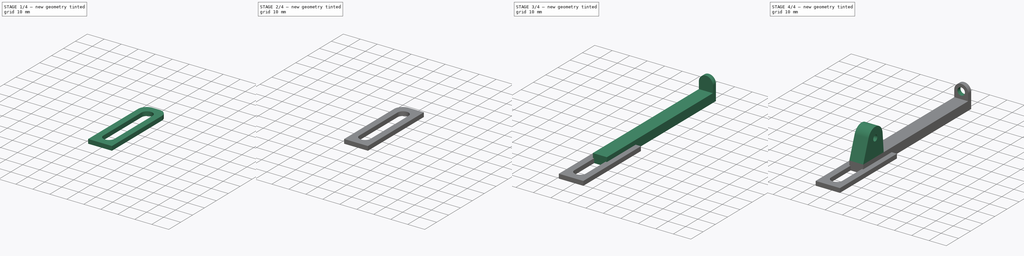
[diagram: build sequence overview — one tinted view per stage of 4, left to right]
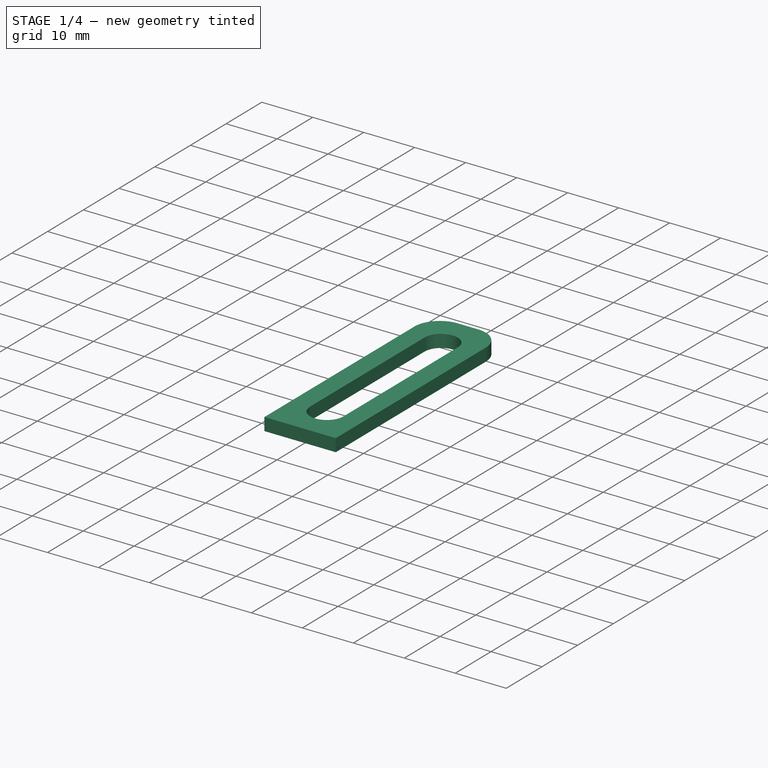
[diagram: stage 1 of 4 — iso view after this stage's code; geometry added in this stage tinted green]
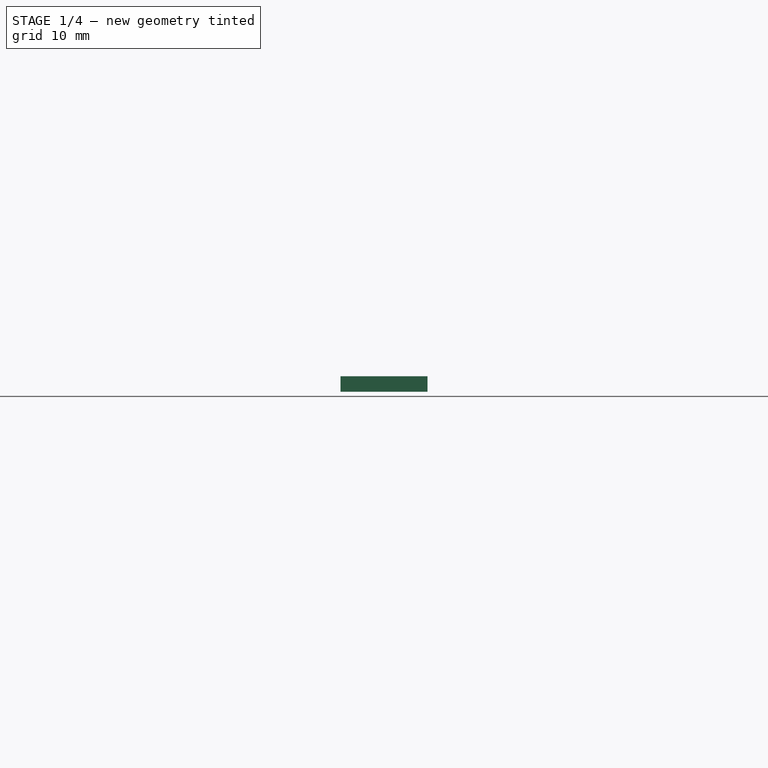
[diagram: stage 1 of 4 — front view after this stage's code; geometry added in this stage tinted green]
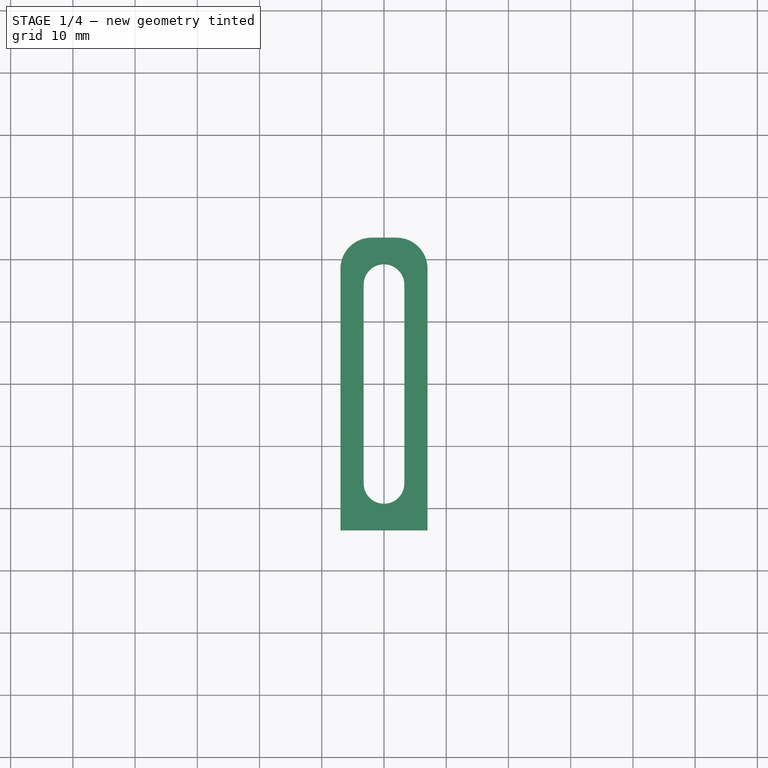
[diagram: stage 1 of 4 — top view after this stage's code; geometry added in this stage tinted green]
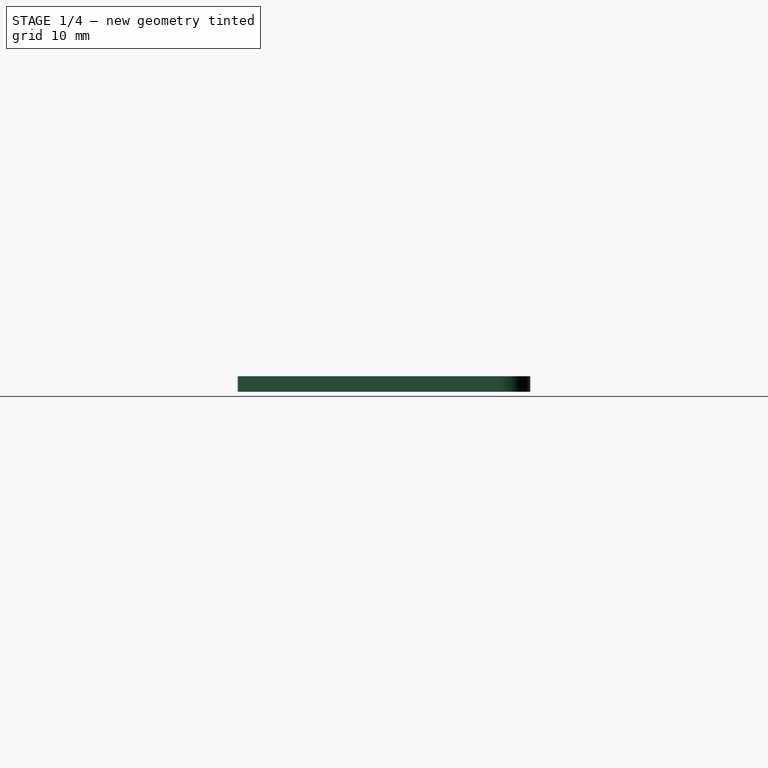
[diagram: stage 1 of 4 — right view after this stage's code; geometry added in this stage tinted green]
FCSTD DOCUMENT  (FreeCAD 0.19R24276 (Git))
Label: Jetson_box_base
License: All rights reserved
LicenseURL: http://en.wikipedia.org/wiki/All_rights_reserved
objects: Sketcher::SketchObject×11, PartDesign::Pad×5, PartDesign::Pocket×3, PartDesign::Body×3, PartDesign::Fillet×2, PartDesign::Hole×1
note: 36 computed .brp shape members not serialized (recipe doc carries the construction recipe); baked Part::Feature solids carry a one-line shape summary decoded from their .brp

FEATURE [Sketcher::SketchObject] Sketch013  label="slot_base_sketch001"
  FullyConstrained = true
  MapMode = 5
  Support = -> [XY_Plane002]
  sketch-geometry (4):
    g0: LineSegment StartX=-7 StartY=-23.5 StartZ=0 EndX=7 EndY=-23.5 EndZ=0
    g1: LineSegment StartX=7 StartY=-23.5 StartZ=0 EndX=7 EndY=23.5 EndZ=0
    g2: LineSegment StartX=7 StartY=23.5 StartZ=0 EndX=-7 EndY=23.5 EndZ=0
    g3: LineSegment StartX=-7 StartY=23.5 StartZ=0 EndX=-7 EndY=-23.5 EndZ=0
  constraints (11):
    c: Coincident(g0,g1)
    c: Coincident(g1,g2)
    c: Coincident(g2,g3)
    c: Coincident(g3,g0)
    c: Horizontal(g0)
    c: Horizontal(g2)
    c: Vertical(g1)
    c: Vertical(g3)
    c: Symmetric(g1,g0,g-1)
    c: DistanceX(g2,g2) = 14
    c: DistanceY(g3,g3) = 47
FEATURE [PartDesign::Pad] Pad004  label="slot_base001"
  Direction = (1,1,1)
  Length = 2.5
  Length2 = 100
  Profile = -> Sketch013
  Type = 0
FEATURE [Sketcher::SketchObject] Sketch012  label="slot_sketch001"
  FullyConstrained = true
  MapMode = 5
  Placement = pos=(0,0,2.5) rot=(0,0,1;0rad)
  Support = -> [Pad004]
  sketch-geometry (4):
    g0: ArcOfCircle CenterX=0 CenterY=16 CenterZ=0 NormalX=0 NormalY=0 NormalZ=1 AngleXU=0 Radius=3.265 StartAngle=1.6e-15 EndAngle=3.14159
    g1: ArcOfCircle CenterX=0 CenterY=-16 CenterZ=0 NormalX=0 NormalY=0 NormalZ=1 AngleXU=0 Radius=3.265 StartAngle=3.14159 EndAngle=6.28319
    g2: LineSegment StartX=-3.265 StartY=16 StartZ=0 EndX=-3.265 EndY=-16 EndZ=0
    g3: LineSegment StartX=3.265 StartY=16 StartZ=0 EndX=3.265 EndY=-16 EndZ=0
  constraints (9):
    c: Tangent(g0,g3) = 1.5708
    c: Tangent(g0,g2) = -1.5708
    c: Tangent(g2,g1) = -1.5708
    c: Tangent(g3,g1) = 1.5708
    c: Equal(g0,g1)
    c: PointOnObject(g0,g-2)
    c: Symmetric(g0,g1,g-1)
    c: DistanceY(g1,g0) = 32
    c: Radius(g0) = 3.265
FEATURE [PartDesign::Pocket] Pocket002  label="slot001"
  BaseFeature = -> Pad004
  Length = 5
  Length2 = 100
  Profile = -> Sketch012
  Type = 1
FEATURE [PartDesign::Body] Body001  label="vert_slot"
  Group = -> [Sketch010,Pad003,Sketch011,Pocket001,Fillet]
  Origin = -> Origin001
  Placement = pos=(-11,46,0) rot=(0,0,1;0rad)
  Tip = -> Fillet
FEATURE [PartDesign::Fillet] Fillet001
  Base = -> Pocket002 [Edge5,Edge8]
  BaseFeature = -> Pocket002
  Radius = 5
  SupportTransform = false
FEATURE [PartDesign::Body] Body002  label="hori_slot"
  Group = -> [Sketch013,Pad004,Sketch012,Pocket002,Fillet001]
  Origin = -> Origin002
  Placement = pos=(27.5,46,0) rot=(0,0,-1;1.5708rad)
  Tip = -> Fillet001
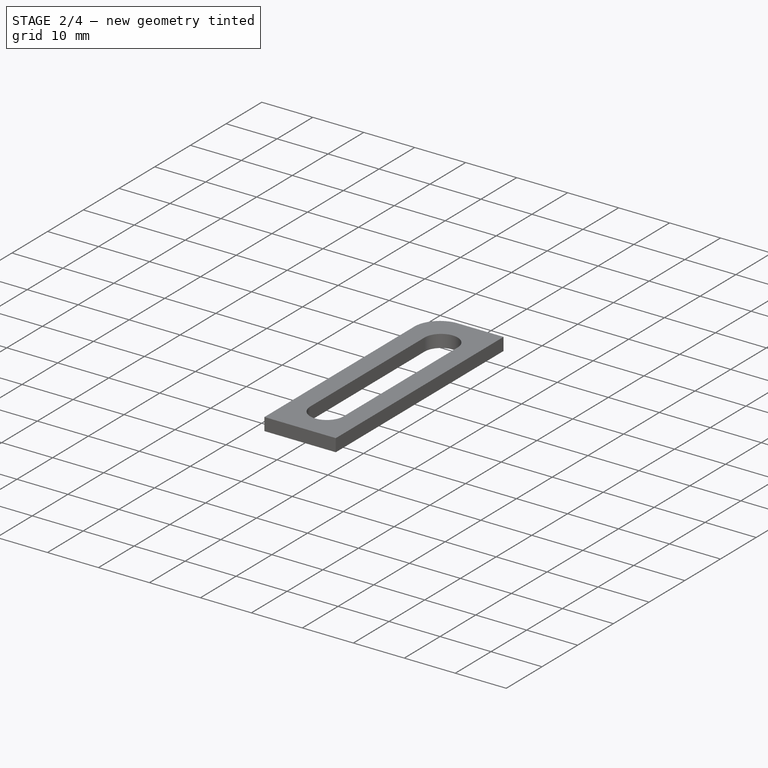
[diagram: stage 2 of 4 — iso view after this stage's code; geometry added in this stage tinted green]
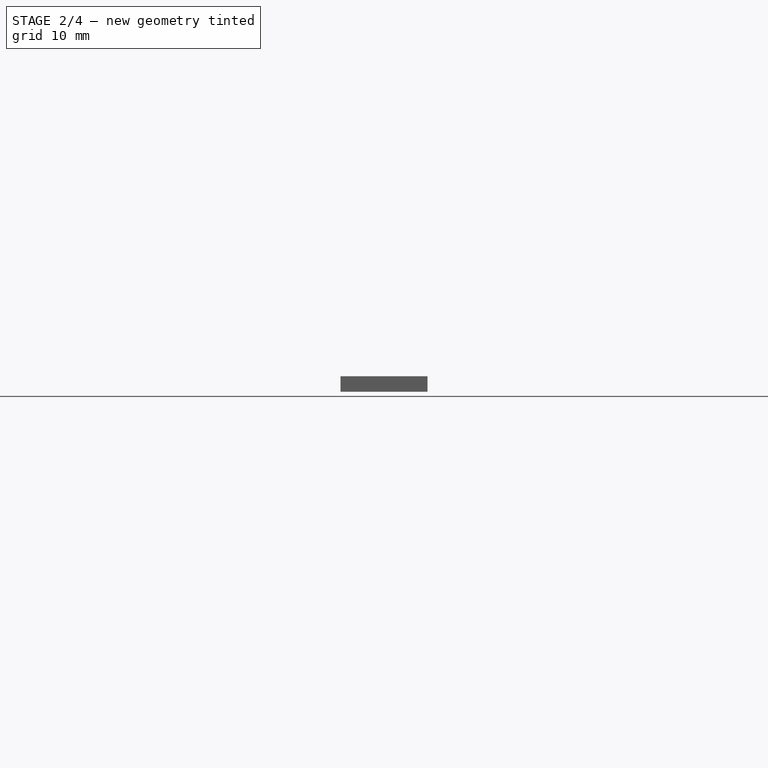
[diagram: stage 2 of 4 — front view after this stage's code; geometry added in this stage tinted green]
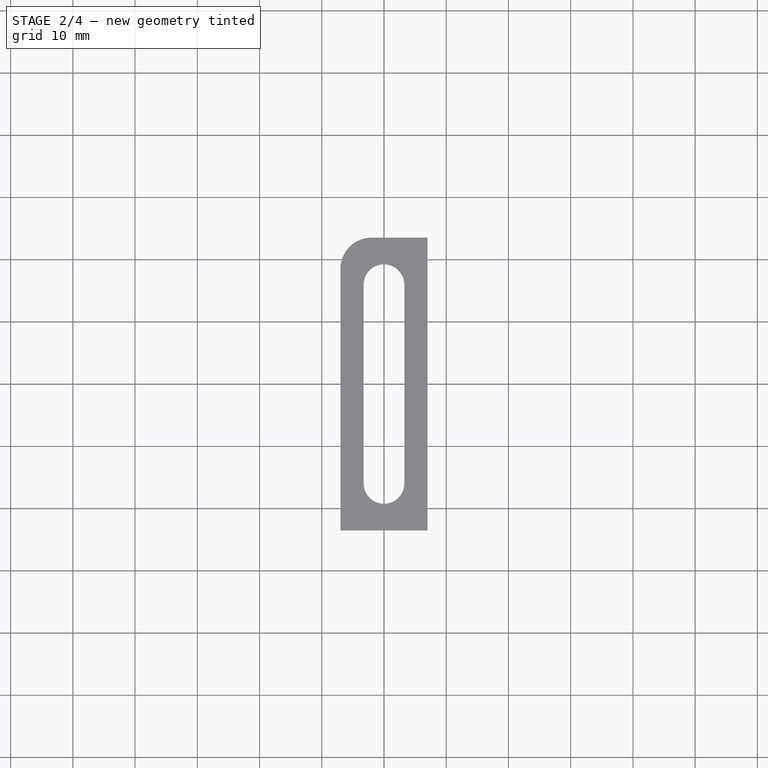
[diagram: stage 2 of 4 — top view after this stage's code; geometry added in this stage tinted green]
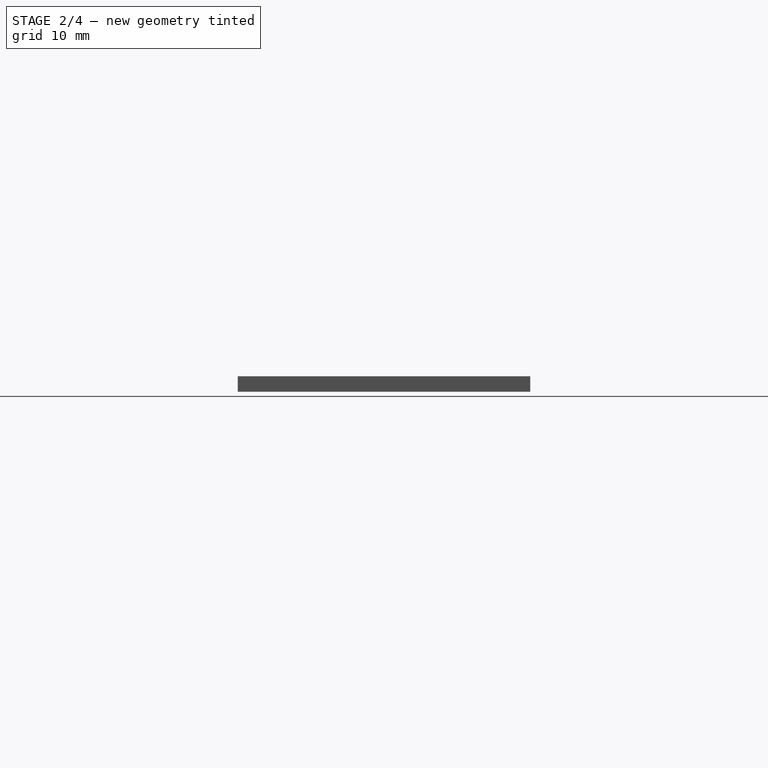
[diagram: stage 2 of 4 — right view after this stage's code; geometry added in this stage tinted green]
FEATURE [Sketcher::SketchObject] Sketch008  label="left_ear_trimmer_sketch"
  ExternalGeometry = -> [Hole]
  FullyConstrained = true
  MapMode = 5
  Placement = pos=(0,0,5) rot=(0,0,1;0rad)
  Support = -> [Hole]
  sketch-geometry (4):
    g0: LineSegment StartX=-4 StartY=16.8978 StartZ=0 EndX=-1 EndY=16.8978 EndZ=0
    g1: LineSegment StartX=-1 StartY=16.8978 StartZ=0 EndX=-1 EndY=0 EndZ=0
    g2: LineSegment StartX=-1 StartY=0 StartZ=0 EndX=-4 EndY=0 EndZ=0
    g3: LineSegment StartX=-4 StartY=0 StartZ=0 EndX=-4 EndY=16.8978 EndZ=0
  constraints (11):
    c: Coincident(g0,g1)
    c: Coincident(g1,g2)
    c: Coincident(g2,g3)
    c: Coincident(g3,g0)
    c: Horizontal(g0)
    c: Horizontal(g2)
    c: Vertical(g1)
    c: Vertical(g3)
    c: Coincident(g0,g-3)
    c: PointOnObject(g1,g-1)
    c: DistanceX(g0,g-3) = 5
FEATURE [Sketcher::SketchObject] Sketch009  label="right_ear_trimmer_sketch"
  ExternalGeometry = -> [Hole]
  FullyConstrained = true
  MapMode = 5
  Placement = pos=(0,0,5) rot=(0,0,1;0rad)
  Support = -> [Hole]
  sketch-geometry (4):
    g0: LineSegment StartX=4 StartY=16.8978 StartZ=0 EndX=1 EndY=16.8978 EndZ=0
    g1: LineSegment StartX=1 StartY=16.8978 StartZ=0 EndX=1 EndY=0 EndZ=0
    g2: LineSegment StartX=1 StartY=0 StartZ=0 EndX=4 EndY=0 EndZ=0
    g3: LineSegment StartX=4 StartY=0 StartZ=0 EndX=4 EndY=16.8978 EndZ=0
  constraints (11):
    c: Coincident(g0,g1)
    c: Coincident(g1,g2)
    c: Coincident(g2,g3)
    c: Coincident(g3,g0)
    c: Horizontal(g0)
    c: Horizontal(g2)
    c: Vertical(g1)
    c: Vertical(g3)
    c: Coincident(g0,g-3)
    c: PointOnObject(g1,g-1)
    c: DistanceX(g-3,g0) = 5
FEATURE [PartDesign::Body] Body  label="Jetson_box_connector"
  Group = -> [Sketch,Pad,Sketch004,Pad001,Sketch005,Pocket,Sketch006,Pad002,Sketch007,Hole,Sketch008,Sketch009]
  Origin = -> Origin
  Tip = -> Hole
FEATURE [Sketcher::SketchObject] Sketch010  label="slot_base_sketch"
  FullyConstrained = true
  MapMode = 5
  Support = -> [XY_Plane001]
  sketch-geometry (4):
    g0: LineSegment StartX=-7 StartY=-23.5 StartZ=0 EndX=7 EndY=-23.5 EndZ=0
    g1: LineSegment StartX=7 StartY=-23.5 StartZ=0 EndX=7 EndY=23.5 EndZ=0
    g2: LineSegment StartX=7 StartY=23.5 StartZ=0 EndX=-7 EndY=23.5 EndZ=0
    g3: LineSegment StartX=-7 StartY=23.5 StartZ=0 EndX=-7 EndY=-23.5 EndZ=0
  constraints (11):
    c: Coincident(g0,g1)
    c: Coincident(g1,g2)
    c: Coincident(g2,g3)
    c: Coincident(g3,g0)
    c: Horizontal(g0)
    c: Horizontal(g2)
    c: Vertical(g1)
    c: Vertical(g3)
    c: Symmetric(g1,g0,g-1)
    c: DistanceX(g2,g2) = 14
    c: DistanceY(g3,g3) = 47
FEATURE [PartDesign::Pad] Pad003  label="slot_base"
  Direction = (1,1,1)
  Length = 2.5
  Length2 = 100
  Profile = -> Sketch010
  Type = 0
FEATURE [Sketcher::SketchObject] Sketch011  label="slot_sketch"
  FullyConstrained = true
  MapMode = 5
  Placement = pos=(0,0,2.5) rot=(0,0,1;0rad)
  Support = -> [Pad003]
  sketch-geometry (4):
    g0: ArcOfCircle CenterX=0 CenterY=16 CenterZ=0 NormalX=0 NormalY=0 NormalZ=1 AngleXU=0 Radius=3.265 StartAngle=1.6e-15 EndAngle=3.14159
    g1: ArcOfCircle CenterX=0 CenterY=-16 CenterZ=0 NormalX=0 NormalY=0 NormalZ=1 AngleXU=0 Radius=3.265 StartAngle=3.14159 EndAngle=6.28319
    g2: LineSegment StartX=-3.265 StartY=16 StartZ=0 EndX=-3.265 EndY=-16 EndZ=0
    g3: LineSegment StartX=3.265 StartY=16 StartZ=0 EndX=3.265 EndY=-16 EndZ=0
  constraints (9):
    c: Tangent(g0,g3) = 1.5708
    c: Tangent(g0,g2) = -1.5708
    c: Tangent(g2,g1) = -1.5708
    c: Tangent(g3,g1) = 1.5708
    c: Equal(g0,g1)
    c: PointOnObject(g0,g-2)
    c: Symmetric(g0,g1,g-1)
    c: DistanceY(g1,g0) = 32
    c: Radius(g0) = 3.265
FEATURE [PartDesign::Pocket] Pocket001  label="slot"
  BaseFeature = -> Pad003
  Length = 5
  Length2 = 100
  Profile = -> Sketch011
  Type = 1
FEATURE [PartDesign::Fillet] Fillet
  Base = -> Pocket001 [Edge5,Edge1]
  BaseFeature = -> Pocket001
  Radius = 5
  SupportTransform = false
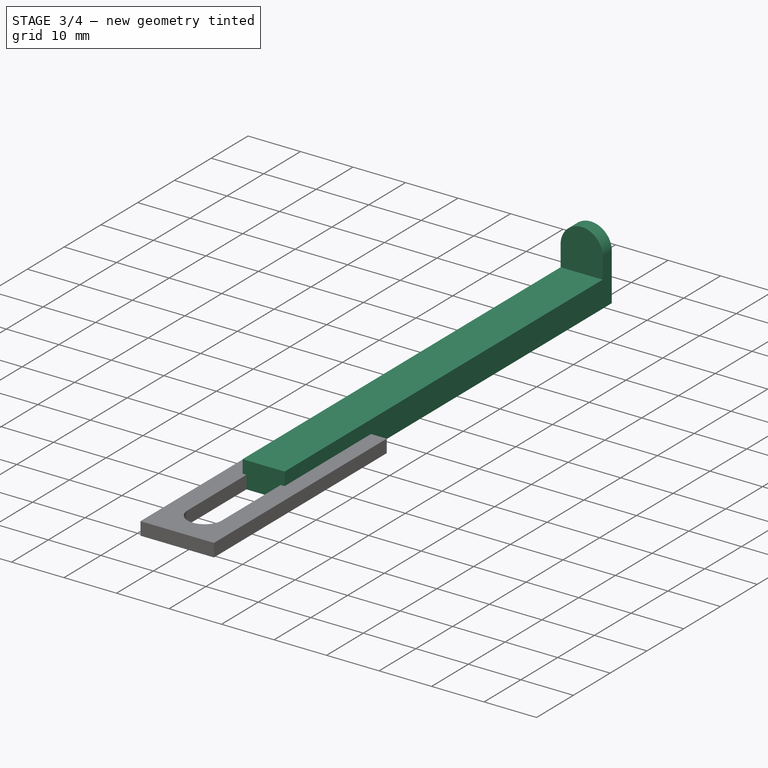
[diagram: stage 3 of 4 — iso view after this stage's code; geometry added in this stage tinted green]
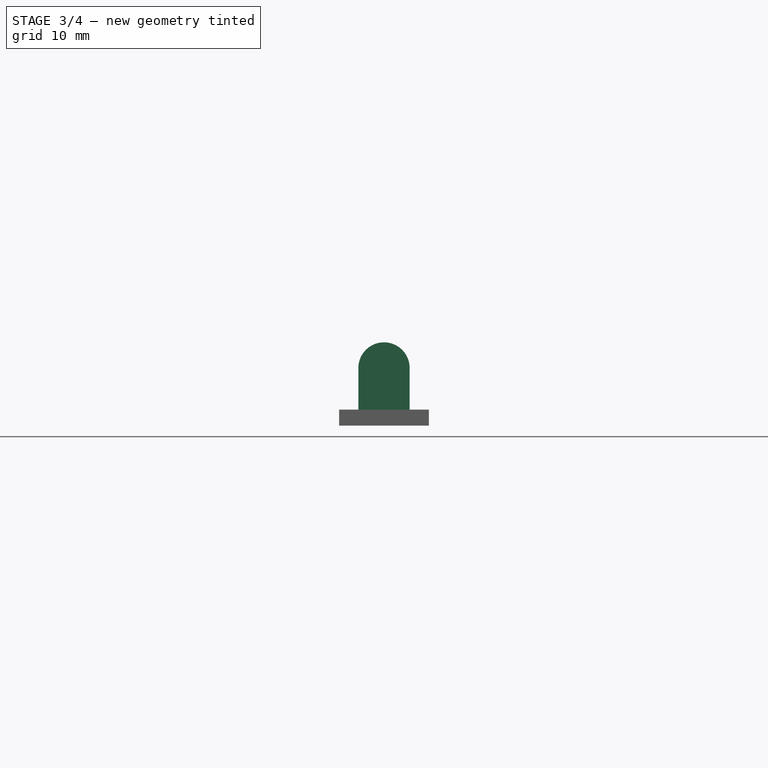
[diagram: stage 3 of 4 — front view after this stage's code; geometry added in this stage tinted green]
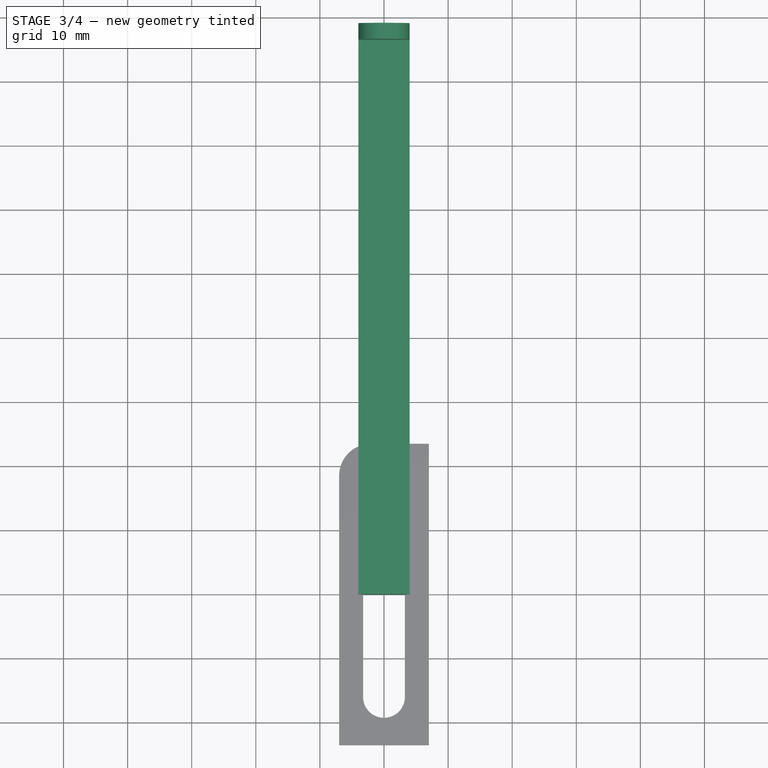
[diagram: stage 3 of 4 — top view after this stage's code; geometry added in this stage tinted green]
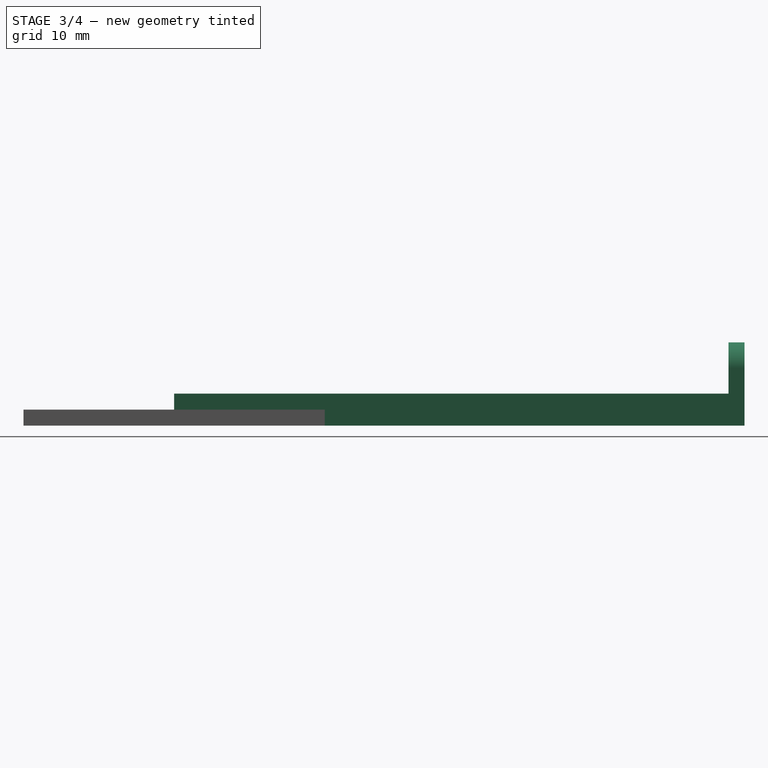
[diagram: stage 3 of 4 — right view after this stage's code; geometry added in this stage tinted green]
FEATURE [Sketcher::SketchObject] Sketch  label="floor_sketch"
  FullyConstrained = true
  MapMode = 5
  Support = -> [XY_Plane]
  sketch-geometry (4):
    g0: LineSegment StartX=-4 StartY=0 StartZ=0 EndX=4 EndY=0 EndZ=0
    g1: LineSegment StartX=4 StartY=0 StartZ=0 EndX=4 EndY=89 EndZ=0
    g2: LineSegment StartX=4 StartY=89 StartZ=0 EndX=-4 EndY=89 EndZ=0
    g3: LineSegment StartX=-4 StartY=89 StartZ=0 EndX=-4 EndY=0 EndZ=0
  constraints (11):
    c: Coincident(g0,g1)
    c: Coincident(g1,g2)
    c: Coincident(g2,g3)
    c: Coincident(g3,g0)
    c: Horizontal(g2)
    c: Vertical(g1)
    c: Vertical(g3)
    c: PointOnObject(g0,g-1)
    c: Symmetric(g0,g0,g-2)
    c: DistanceY(g3,g3) = 89
    c: DistanceX(g0,g-1) = 4
FEATURE [PartDesign::Pad] Pad  label="floor"
  Direction = (1,1,1)
  Length = 5
  Length2 = 100
  Profile = -> Sketch
  Type = 0
FEATURE [Sketcher::SketchObject] Sketch004  label="dowel_hole_base_sketch"
  ExternalGeometry = -> [Pad]
  FullyConstrained = true
  MapMode = 5
  Placement = pos=(0,89,0) rot=(0,0.707107,0.707107;3.14159rad)
  sketch-geometry (4):
    g0: ArcOfCircle CenterX=0 CenterY=9 CenterZ=0 NormalX=0 NormalY=0 NormalZ=1 AngleXU=0 Radius=4 StartAngle=-1.457e-13 EndAngle=3.14159
    g1: LineSegment StartX=-4 StartY=9 StartZ=0 EndX=-4 EndY=5 EndZ=0
    g2: LineSegment StartX=4 StartY=9 StartZ=0 EndX=4 EndY=5 EndZ=0
    g3: LineSegment StartX=4 StartY=5 StartZ=0 EndX=-4 EndY=5 EndZ=0
  constraints (9):
    c: Radius(g0) = 4
    c: Tangent(g1,g0) = -1.5708
    c: PointOnObject(g0,g-2)
    c: Coincident(g-3,g1)
    c: Coincident(g2,g-3)
    c: Coincident(g3,g2)
    c: Coincident(g3,g1)
    c: Tangent(g2,g0) = 1.5708
    c: Distance(g0,g3) = 4
FEATURE [PartDesign::Pad] Pad001  label="dowel_hole_base"
  BaseFeature = -> Pad
  Direction = (1,1,1)
  Length = 2.5
  Length2 = 100
  Profile = -> Sketch004
  Reversed = true
  Type = 0
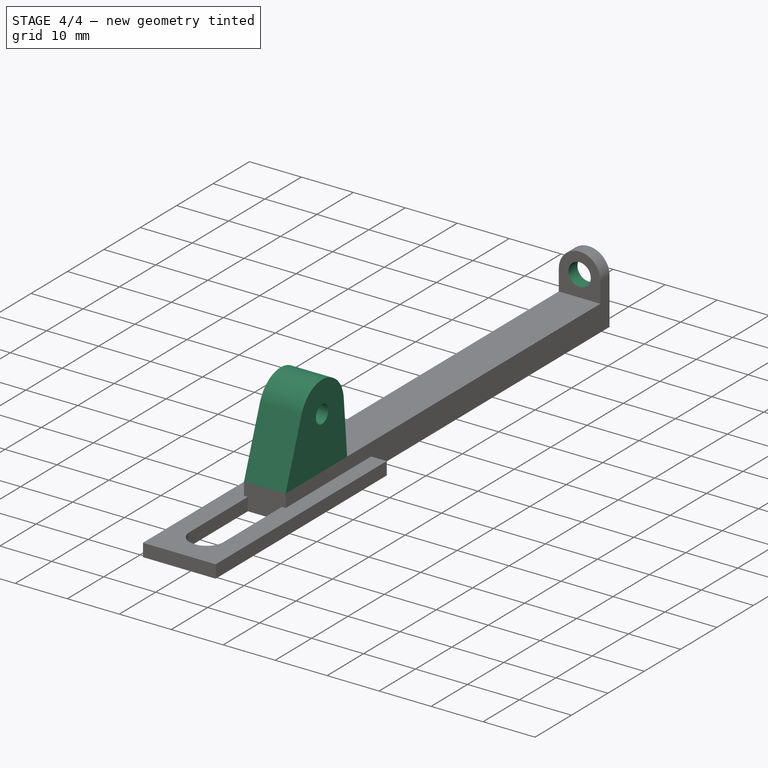
[diagram: stage 4 of 4 — iso view after this stage's code; geometry added in this stage tinted green]
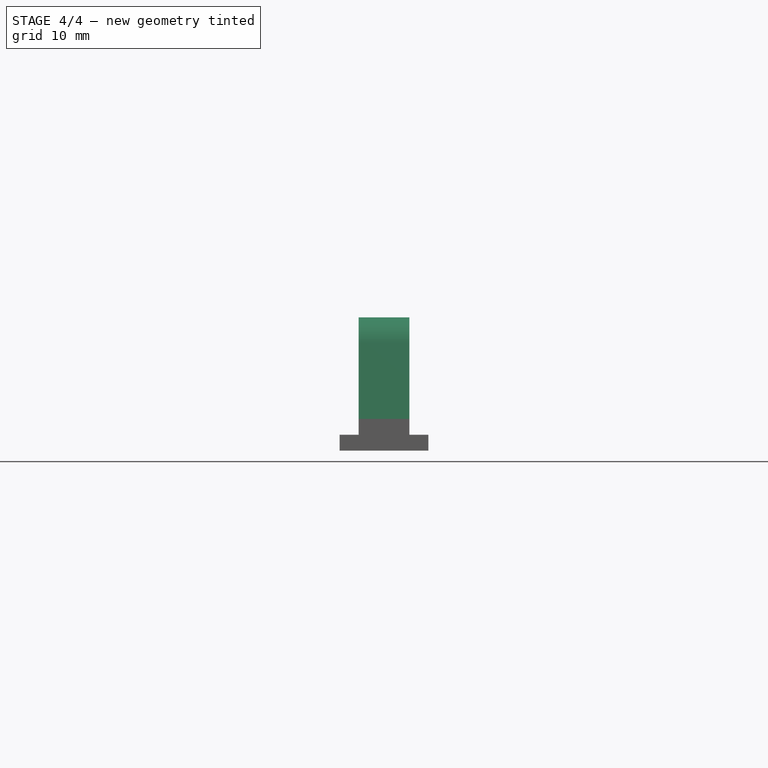
[diagram: stage 4 of 4 — front view after this stage's code; geometry added in this stage tinted green]
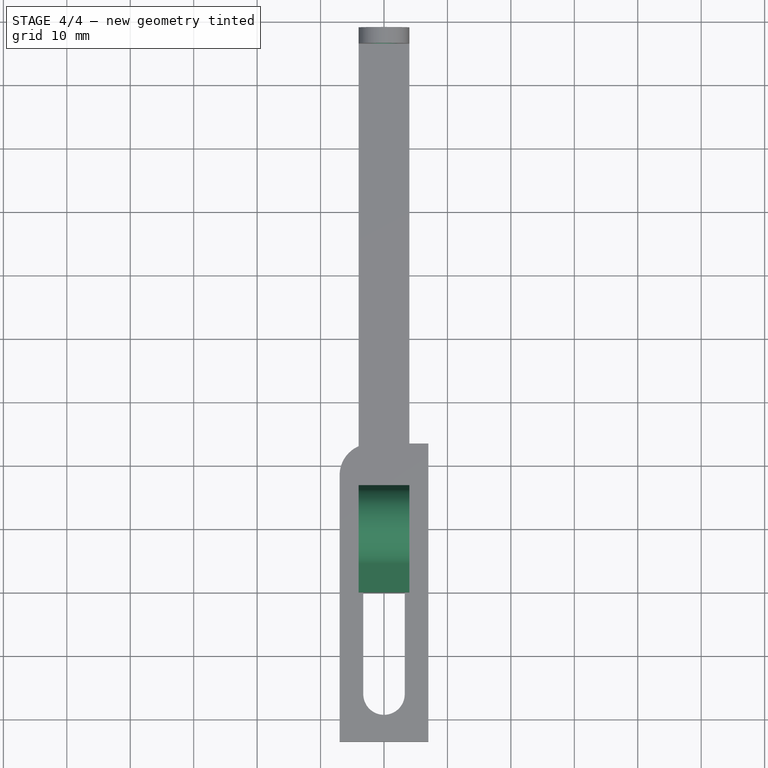
[diagram: stage 4 of 4 — top view after this stage's code; geometry added in this stage tinted green]
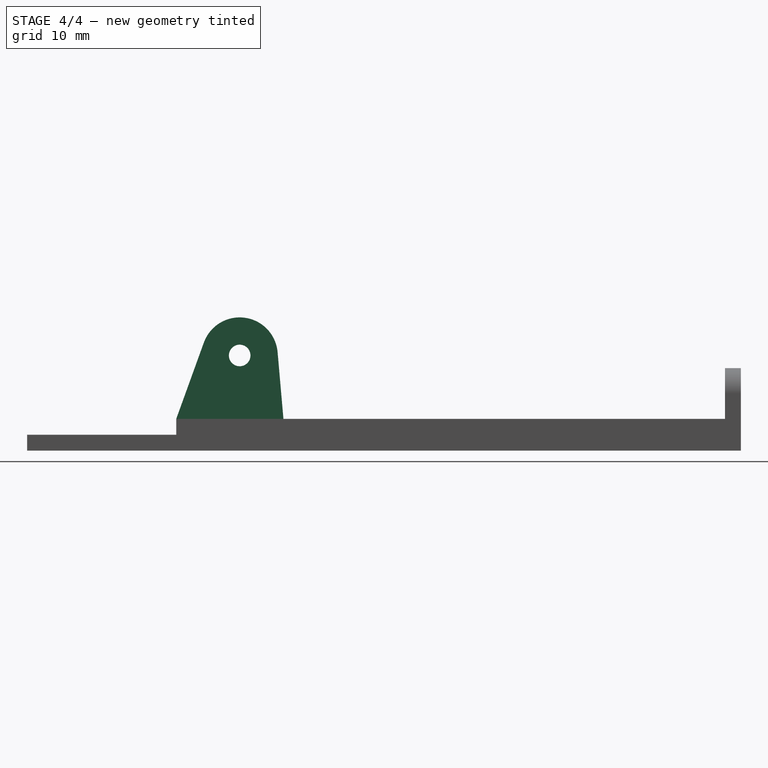
[diagram: stage 4 of 4 — right view after this stage's code; geometry added in this stage tinted green]
FEATURE [Sketcher::SketchObject] Sketch005  label="dowel_hole_sketch"
  ExternalGeometry = -> [Pad001]
  FullyConstrained = true
  MapMode = 5
  Placement = pos=(0,89,0) rot=(0,0.707107,0.707107;3.14159rad)
  Support = -> [Pad001]
  sketch-geometry (1):
    g0: Circle CenterX=0 CenterY=9 CenterZ=0 NormalX=0 NormalY=0 NormalZ=1 AngleXU=0 Radius=2.15
  constraints (2):
    c: Coincident(g0,g-3)
    c: Radius(g0) = 2.15
FEATURE [PartDesign::Pocket] Pocket  label="dowel_hole"
  BaseFeature = -> Pad001
  Length = 5
  Length2 = 100
  Profile = -> Sketch005
  Type = 1
FEATURE [Sketcher::SketchObject] Sketch006  label="dual_ear_sketch"
  ExternalGeometry = -> [Pocket]
  FullyConstrained = true
  MapMode = 5
  Placement = pos=(-4,0,0) rot=(0.57735,-0.57735,-0.57735;2.0944rad)
  Support = -> [Pocket]
  sketch-geometry (4):
    g0: ArcOfCircle CenterX=-10 CenterY=15 CenterZ=0 NormalX=0 NormalY=0 NormalZ=1 AngleXU=0 Radius=6 StartAngle=0.347249 EndAngle=3.05433
    g1: LineSegment StartX=-4.35813 StartY=17.0419 StartZ=0 EndX=0 EndY=5 EndZ=0
    g2: LineSegment StartX=-15.9772 StartY=15.5229 StartZ=0 EndX=-16.8978 EndY=5 EndZ=0
    g3: LineSegment StartX=-16.8978 StartY=5 StartZ=0 EndX=0 EndY=5 EndZ=0
  constraints (10):
    c: Coincident(g1,g-3)
    c: PointOnObject(g2,g-3)
    c: Tangent(g1,g0) = 1.5708
    c: Tangent(g2,g0) = -1.5708
    c: Distance(g0,g-3) = 10
    c: DistanceX(g-2,g0) = -10
    c: Radius(g0) = 6
    c: Coincident(g3,g2)
    c: Coincident(g3,g1)
    c: Angle(g3,g2) = 1.48353
FEATURE [PartDesign::Pad] Pad002  label="dual_ear"
  BaseFeature = -> Pocket
  Direction = (1,1,1)
  Length = 10
  Length2 = 100
  Profile = -> Sketch006
  Reversed = true
  Type = 3
  UpToFace = -> Pocket [Face3]
FEATURE [Sketcher::SketchObject] Sketch007  label="ear_hole_sketch"
  ExternalGeometry = -> [Pad002]
  FullyConstrained = true
  MapMode = 5
  Placement = pos=(-4,0,0) rot=(0.57735,-0.57735,-0.57735;2.0944rad)
  Support = -> [Pad002]
  sketch-geometry (1):
    g0: Circle CenterX=-10 CenterY=15 CenterZ=0 NormalX=0 NormalY=0 NormalZ=1 AngleXU=0 Radius=1.7
  constraints (2):
    c: Coincident(g0,g-3)
    c: Radius(g0) = 1.7
FEATURE [PartDesign::Hole] Hole  label="ear_hole"
  BaseFeature = -> Pad002
  Depth = 25
  DepthType = 1
  Diameter = 3.4
  DrillForDepth = false
  DrillPoint = 1
  DrillPointAngle = 118
  HoleCutCountersinkAngle = 90
  HoleCutCustomValues = false
  HoleCutDepth = 0
  HoleCutDiameter = 6.1
  HoleCutType = 0
  ModelActualThread = false
  Profile = -> Sketch007
  Tapered = false
  TaperedAngle = 90
  ThreadAngle = 0
  ThreadClass = 0
  ThreadCutOffInner = 0
  ThreadCutOffOuter = 0
  ThreadDirection = 0
  ThreadFit = 0
  ThreadPitch = 0
  ThreadSize = 9
  ThreadType = 1
  Threaded = false
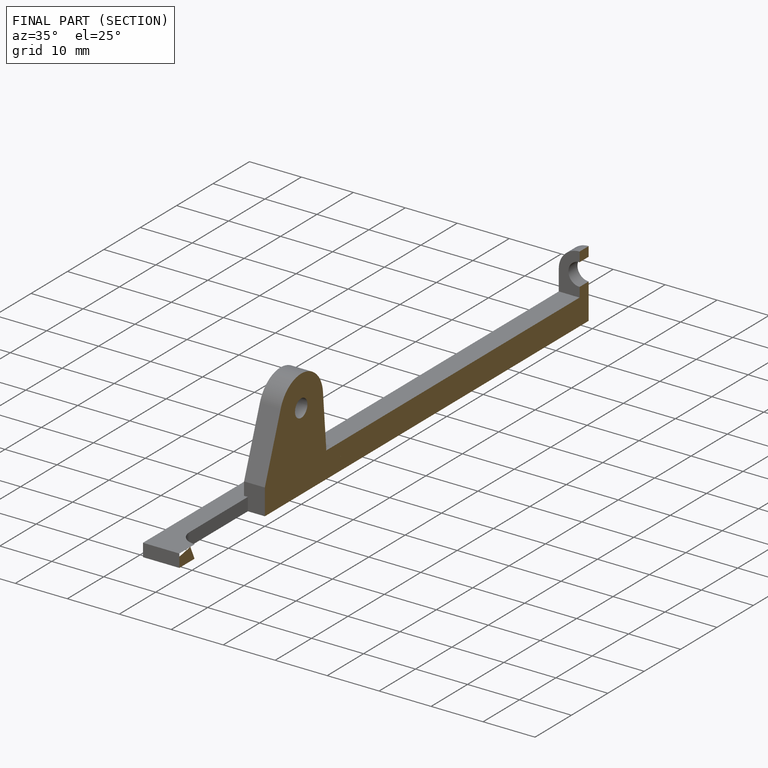
[diagram: finished part — half-section view (interior)]
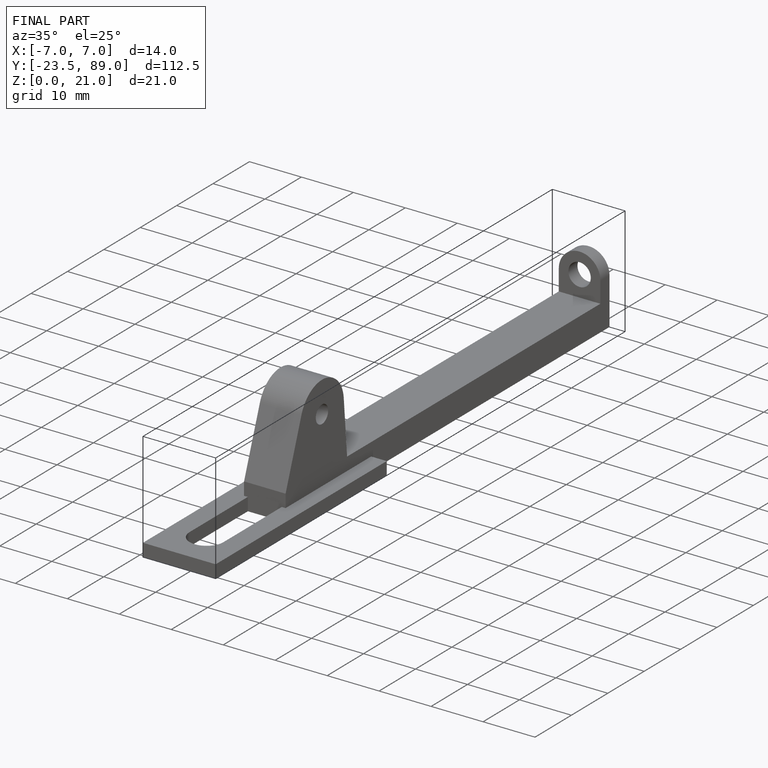
[diagram: finished part — iso view with bounding-box wireframe]
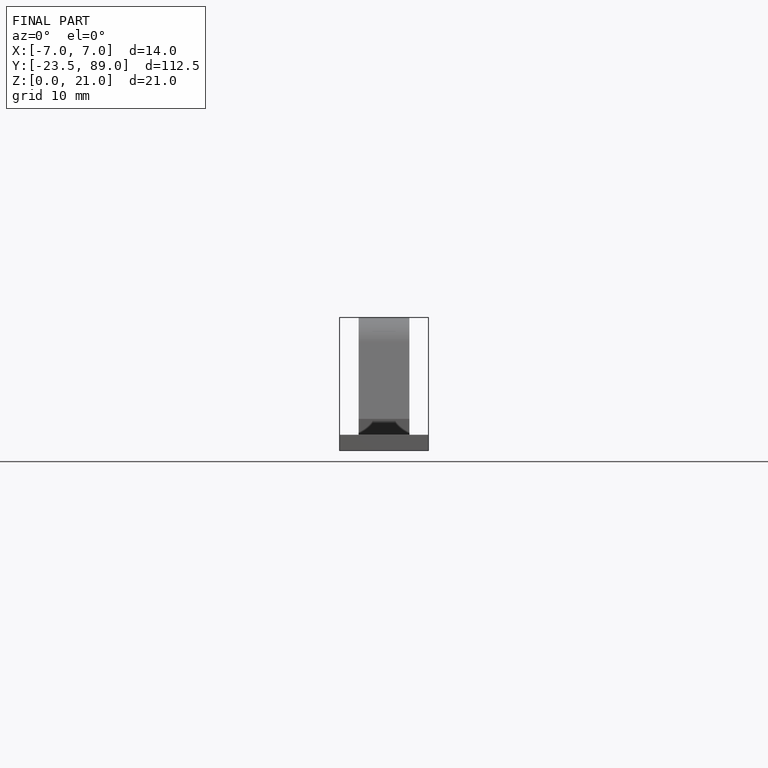
[diagram: finished part — front view with bounding-box wireframe]
